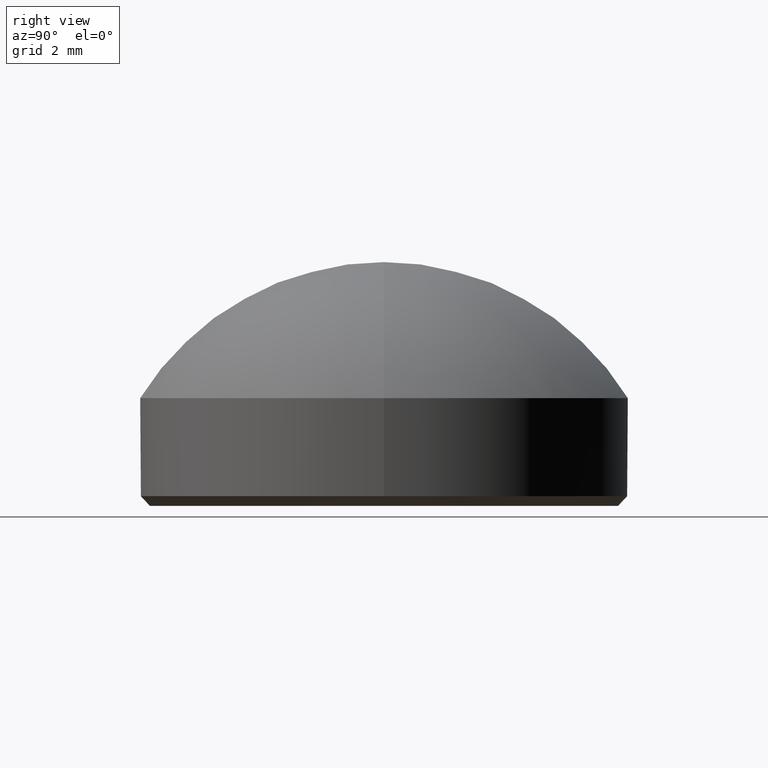
[diagram: clean part render]
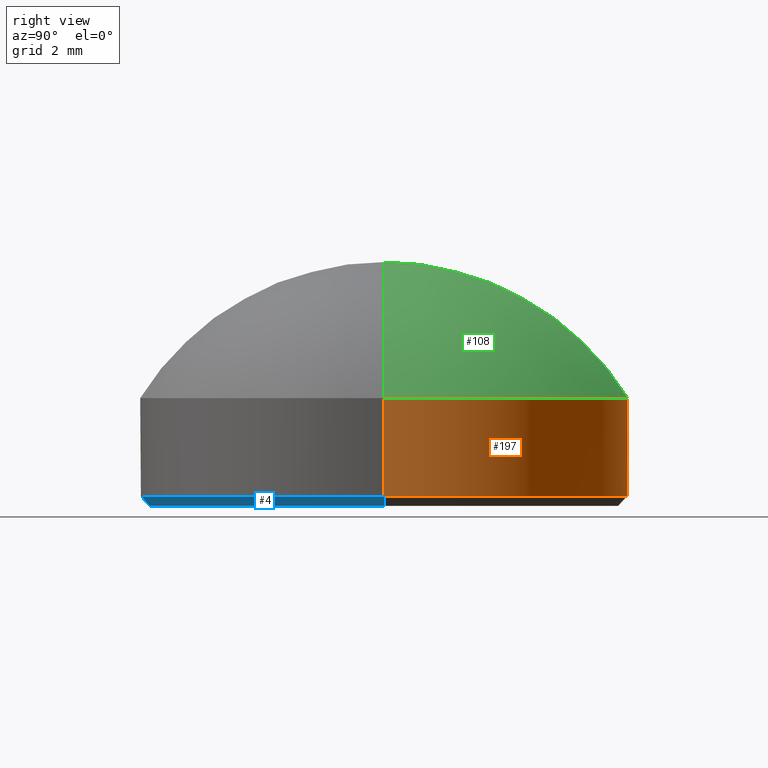
[diagram: same view with three faces highlighted in distinct colors, each labeled with its STEP entity id]
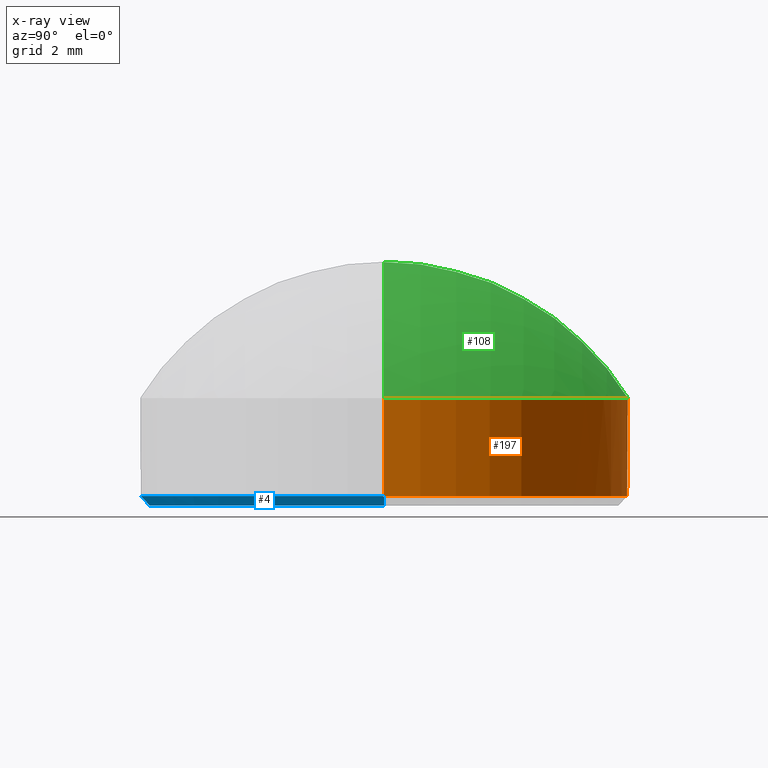
[diagram: x-ray of the same camera — body ghosted, the three highlighted faces saturated]
A machine part, right view with three faces highlighted in distinct colors.
The next image is the same camera in x-ray (body ghosted, the three faces saturated) — at least one of them is partly hidden behind the body in this view.
Their STEP definitions:

[orange] entity #197 — the highlighted cylindrical surface (partial cylindrical patch) has radius 5 mm, axis along (-0, -0, -1).
#10 = ORIENTED_EDGE ( 'NONE', *, *, #66, .T. ) ;
#11 = CIRCLE ( 'NONE', #62, 5.000000000000000000 ) ;
#12 = DIRECTION ( 'NONE',  ( 1.000000000000000000, 0.000000000000000000, 0.000000000000000000 ) ) ;
#18 = CARTESIAN_POINT ( 'NONE',  ( -5.000000000000000000, 0.000000000000000000, 2.209999999999999964 ) ) ;
#19 = DIRECTION ( 'NONE',  ( -1.000000000000000000, 0.000000000000000000, 0.000000000000000000 ) ) ;
#25 = LINE ( 'NONE', #207, #166 ) ;
#27 = VERTEX_POINT ( 'NONE', #129 ) ;
#35 = FACE_OUTER_BOUND ( 'NONE', #148, .T. ) ;
#37 = CARTESIAN_POINT ( 'NONE',  ( 0.000000000000000000, 0.000000000000000000, 2.209999999999999964 ) ) ;
#54 = DIRECTION ( 'NONE',  ( 0.000000000000000000, 0.000000000000000000, 1.000000000000000000 ) ) ;
#58 = DIRECTION ( 'NONE',  ( -0.000000000000000000, -0.000000000000000000, -1.000000000000000000 ) ) ;
#62 = AXIS2_PLACEMENT_3D ( 'NONE', #157, #193, #12 ) ;
#66 = EDGE_CURVE ( 'NONE', #167, #27, #25, .T. ) ;
#70 = DIRECTION ( 'NONE',  ( 1.000000000000000000, 0.000000000000000000, 0.000000000000000000 ) ) ;
#72 = CARTESIAN_POINT ( 'NONE',  ( -5.000000000000000000, 0.000000000000000000, 2.209999999999999964 ) ) ;
#79 = CARTESIAN_POINT ( 'NONE',  ( -5.000000000000000000, 0.000000000000000000, 0.1999999999999987899 ) ) ;
#95 = ORIENTED_EDGE ( 'NONE', *, *, #205, .F. ) ;
#107 = CARTESIAN_POINT ( 'NONE',  ( 0.000000000000000000, 0.000000000000000000, 2.209999999999999964 ) ) ;
#125 = CIRCLE ( 'NONE', #176, 5.000000000000000000 ) ;
#127 = DIRECTION ( 'NONE',  ( -0.000000000000000000, -0.000000000000000000, -1.000000000000000000 ) ) ;
#128 = VECTOR ( 'NONE', #199, 1000.000000000000000 ) ;
#129 = CARTESIAN_POINT ( 'NONE',  ( 5.000000000000000000, 6.123233995736766282E-16, 0.1999999999999987899 ) ) ;
#130 = EDGE_CURVE ( 'NONE', #27, #156, #11, .T. ) ;
#135 = LINE ( 'NONE', #18, #128 ) ;
#142 = AXIS2_PLACEMENT_3D ( 'NONE', #107, #58, #19 ) ;
#148 = EDGE_LOOP ( 'NONE', ( #190, #10, #152, #95 ) ) ;
#152 = ORIENTED_EDGE ( 'NONE', *, *, #130, .T. ) ;
#156 = VERTEX_POINT ( 'NONE', #79 ) ;
#157 = CARTESIAN_POINT ( 'NONE',  ( 0.000000000000000000, 0.000000000000000000, 0.1999999999999987899 ) ) ;
#162 = CYLINDRICAL_SURFACE ( 'NONE', #142, 5.000000000000000000 ) ;
#166 = VECTOR ( 'NONE', #127, 1000.000000000000000 ) ;
#167 = VERTEX_POINT ( 'NONE', #201 ) ;
#176 = AXIS2_PLACEMENT_3D ( 'NONE', #37, #54, #70 ) ;
#183 = VERTEX_POINT ( 'NONE', #72 ) ;
#190 = ORIENTED_EDGE ( 'NONE', *, *, #213, .F. ) ;
#193 = DIRECTION ( 'NONE',  ( -0.000000000000000000, -0.000000000000000000, 1.000000000000000000 ) ) ;
#197 = ADVANCED_FACE ( 'NONE', ( #35 ), #162, .T. ) ;
#199 = DIRECTION ( 'NONE',  ( -0.000000000000000000, -0.000000000000000000, -1.000000000000000000 ) ) ;
#201 = CARTESIAN_POINT ( 'NONE',  ( 5.000000000000000000, 6.123233995736766282E-16, 2.209999999999999964 ) ) ;
#205 = EDGE_CURVE ( 'NONE', #183, #156, #135, .T. ) ;
#207 = CARTESIAN_POINT ( 'NONE',  ( 5.000000000000000000, 6.123233995736766282E-16, 2.209999999999999964 ) ) ;
#213 = EDGE_CURVE ( 'NONE', #167, #183, #125, .T. ) ;

[blue] entity #4 — the highlighted conical surface has half-angle 45 deg.
#4 = ADVANCED_FACE ( 'NONE', ( #63 ), #184, .T. ) ;
#8 = DIRECTION ( 'NONE',  ( -0.000000000000000000, -0.000000000000000000, 1.000000000000000000 ) ) ;
#15 = LINE ( 'NONE', #178, #112 ) ;
#17 = CARTESIAN_POINT ( 'NONE',  ( 0.000000000000000000, 0.000000000000000000, 0.000000000000000000 ) ) ;
#20 = ORIENTED_EDGE ( 'NONE', *, *, #84, .F. ) ;
#27 = VERTEX_POINT ( 'NONE', #129 ) ;
#34 = CARTESIAN_POINT ( 'NONE',  ( -4.800000000000000711, 6.000769315822031726E-16, 0.000000000000000000 ) ) ;
#38 = EDGE_CURVE ( 'NONE', #156, #27, #77, .T. ) ;
#53 = DIRECTION ( 'NONE',  ( 1.000000000000000000, 0.000000000000000000, 0.000000000000000000 ) ) ;
#60 = DIRECTION ( 'NONE',  ( 1.000000000000000000, 0.000000000000000000, 0.000000000000000000 ) ) ;
#63 = FACE_OUTER_BOUND ( 'NONE', #153, .T. ) ;
#77 = CIRCLE ( 'NONE', #92, 5.000000000000000000 ) ;
#79 = CARTESIAN_POINT ( 'NONE',  ( -5.000000000000000000, 0.000000000000000000, 0.1999999999999987899 ) ) ;
#83 = CARTESIAN_POINT ( 'NONE',  ( 5.000000000000000000, 0.000000000000000000, 0.1999999999999987899 ) ) ;
#84 = EDGE_CURVE ( 'NONE', #91, #96, #122, .T. ) ;
#88 = ORIENTED_EDGE ( 'NONE', *, *, #187, .F. ) ;
#91 = VERTEX_POINT ( 'NONE', #134 ) ;
#92 = AXIS2_PLACEMENT_3D ( 'NONE', #170, #168, #210 ) ;
#93 = EDGE_CURVE ( 'NONE', #91, #27, #177, .T. ) ;
#96 = VERTEX_POINT ( 'NONE', #34 ) ;
#100 = DIRECTION ( 'NONE',  ( -0.000000000000000000, -0.000000000000000000, -1.000000000000000000 ) ) ;
#105 = DIRECTION ( 'NONE',  ( -0.7071067811865490160, 8.659560562354953812E-17, 0.7071067811865460184 ) ) ;
#106 = VECTOR ( 'NONE', #132, 1000.000000000000114 ) ;
#112 = VECTOR ( 'NONE', #105, 1000.000000000000114 ) ;
#113 = CARTESIAN_POINT ( 'NONE',  ( 0.000000000000000000, 0.000000000000000000, 0.1999999999999987899 ) ) ;
#122 = CIRCLE ( 'NONE', #155, 4.800000000000000711 ) ;
#129 = CARTESIAN_POINT ( 'NONE',  ( 5.000000000000000000, 6.123233995736766282E-16, 0.1999999999999987899 ) ) ;
#132 = DIRECTION ( 'NONE',  ( 0.7071067811865490160, 0.000000000000000000, 0.7071067811865460184 ) ) ;
#134 = CARTESIAN_POINT ( 'NONE',  ( 4.800000000000000711, 0.000000000000000000, 0.000000000000000000 ) ) ;
#149 = ORIENTED_EDGE ( 'NONE', *, *, #38, .F. ) ;
#153 = EDGE_LOOP ( 'NONE', ( #88, #20, #173, #149 ) ) ;
#155 = AXIS2_PLACEMENT_3D ( 'NONE', #17, #100, #53 ) ;
#156 = VERTEX_POINT ( 'NONE', #79 ) ;
#168 = DIRECTION ( 'NONE',  ( -0.000000000000000000, -0.000000000000000000, 1.000000000000000000 ) ) ;
#170 = CARTESIAN_POINT ( 'NONE',  ( 0.000000000000000000, 0.000000000000000000, 0.1999999999999987899 ) ) ;
#173 = ORIENTED_EDGE ( 'NONE', *, *, #93, .T. ) ;
#177 = LINE ( 'NONE', #83, #106 ) ;
#178 = CARTESIAN_POINT ( 'NONE',  ( -5.000000000000000000, 6.123233995736766282E-16, 0.1999999999999987899 ) ) ;
#184 = CONICAL_SURFACE ( 'NONE', #189, 5.000000000000000000, 0.7853981633974504994 ) ;
#187 = EDGE_CURVE ( 'NONE', #96, #156, #15, .T. ) ;
#189 = AXIS2_PLACEMENT_3D ( 'NONE', #113, #8, #60 ) ;
#210 = DIRECTION ( 'NONE',  ( 1.000000000000000000, 0.000000000000000000, 0.000000000000000000 ) ) ;

[green] entity #108 — the highlighted spherical surface has radius 5.8753 mm.
#6 = EDGE_CURVE ( 'NONE', #167, #28, #36, .T. ) ;
#7 = AXIS2_PLACEMENT_3D ( 'NONE', #48, #67, #101 ) ;
#23 = ORIENTED_EDGE ( 'NONE', *, *, #102, .T. ) ;
#28 = VERTEX_POINT ( 'NONE', #126 ) ;
#29 = SPHERICAL_SURFACE ( 'NONE', #7, 5.875286738351255700 ) ;
#32 = CARTESIAN_POINT ( 'NONE',  ( 0.000000000000000000, 0.000000000000000000, -0.8752867383512550337 ) ) ;
#36 = CIRCLE ( 'NONE', #181, 5.875286738351255700 ) ;
#37 = CARTESIAN_POINT ( 'NONE',  ( 0.000000000000000000, 0.000000000000000000, 2.209999999999999964 ) ) ;
#40 = ORIENTED_EDGE ( 'NONE', *, *, #213, .T. ) ;
#48 = CARTESIAN_POINT ( 'NONE',  ( 0.000000000000000000, 0.000000000000000000, -0.8752867383512550337 ) ) ;
#54 = DIRECTION ( 'NONE',  ( 0.000000000000000000, 0.000000000000000000, 1.000000000000000000 ) ) ;
#67 = DIRECTION ( 'NONE',  ( -0.000000000000000000, -1.000000000000000000, 0.000000000000000000 ) ) ;
#70 = DIRECTION ( 'NONE',  ( 1.000000000000000000, 0.000000000000000000, 0.000000000000000000 ) ) ;
#72 = CARTESIAN_POINT ( 'NONE',  ( -5.000000000000000000, 0.000000000000000000, 2.209999999999999964 ) ) ;
#74 = EDGE_LOOP ( 'NONE', ( #94, #40, #23 ) ) ;
#75 = DIRECTION ( 'NONE',  ( -1.224646799147353207E-16, -1.000000000000000000, -0.000000000000000000 ) ) ;
#94 = ORIENTED_EDGE ( 'NONE', *, *, #6, .F. ) ;
#99 = DIRECTION ( 'NONE',  ( 0.000000000000000000, 1.000000000000000000, 0.000000000000000000 ) ) ;
#101 = DIRECTION ( 'NONE',  ( -1.000000000000000000, 0.000000000000000000, 0.000000000000000000 ) ) ;
#102 = EDGE_CURVE ( 'NONE', #183, #28, #212, .T. ) ;
#108 = ADVANCED_FACE ( 'NONE', ( #211 ), #29, .T. ) ;
#125 = CIRCLE ( 'NONE', #176, 5.000000000000000000 ) ;
#126 = CARTESIAN_POINT ( 'NONE',  ( -3.597575549097378931E-16, 0.000000000000000000, 5.000000000000000888 ) ) ;
#139 = DIRECTION ( 'NONE',  ( 1.000000000000000000, -1.224646799147353207E-16, 0.000000000000000000 ) ) ;
#154 = CARTESIAN_POINT ( 'NONE',  ( 0.000000000000000000, 0.000000000000000000, -0.8752867383512550337 ) ) ;
#167 = VERTEX_POINT ( 'NONE', #201 ) ;
#176 = AXIS2_PLACEMENT_3D ( 'NONE', #37, #54, #70 ) ;
#181 = AXIS2_PLACEMENT_3D ( 'NONE', #154, #75, #139 ) ;
#183 = VERTEX_POINT ( 'NONE', #72 ) ;
#195 = DIRECTION ( 'NONE',  ( 0.000000000000000000, 0.000000000000000000, 1.000000000000000000 ) ) ;
#198 = AXIS2_PLACEMENT_3D ( 'NONE', #32, #99, #195 ) ;
#201 = CARTESIAN_POINT ( 'NONE',  ( 5.000000000000000000, 6.123233995736766282E-16, 2.209999999999999964 ) ) ;
#211 = FACE_OUTER_BOUND ( 'NONE', #74, .T. ) ;
#212 = CIRCLE ( 'NONE', #198, 5.875286738351255700 ) ;
#213 = EDGE_CURVE ( 'NONE', #167, #183, #125, .T. ) ;